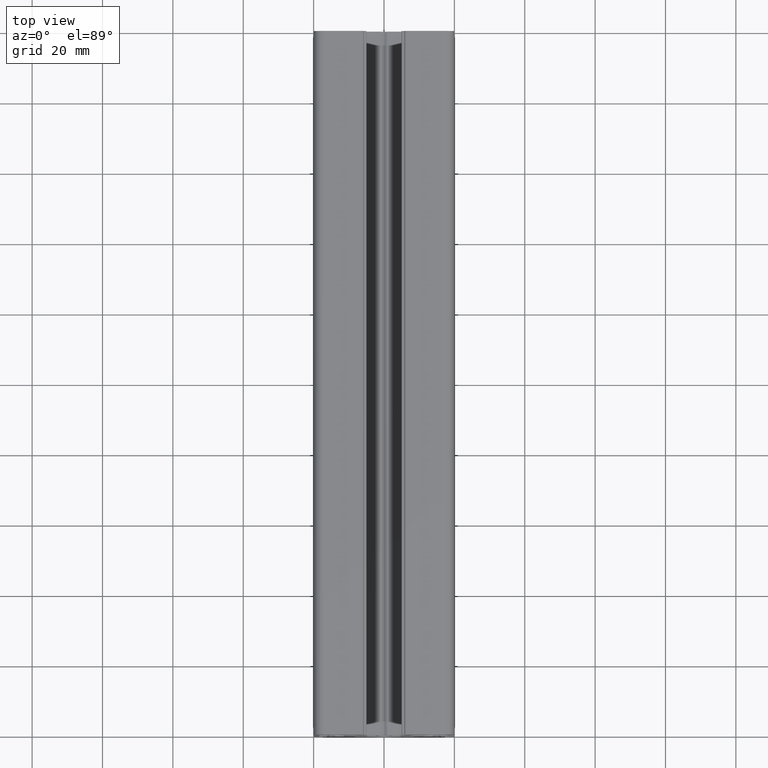
[diagram: clean part render]
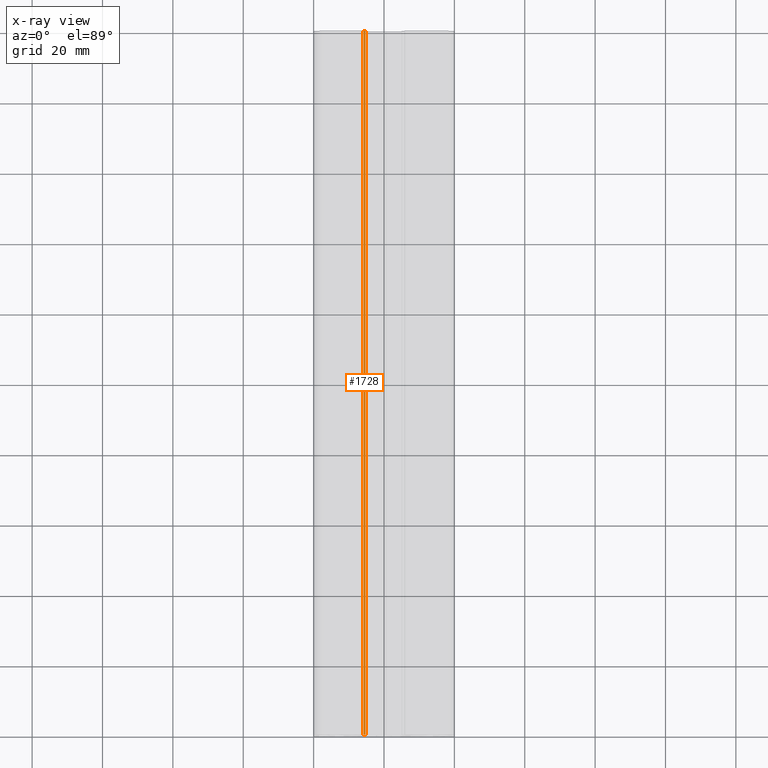
[diagram: x-ray — body ghosted, one internal face saturated and labeled with its STEP entity id]
A machine part, top view, then the same camera in x-ray: the body is ghosted and one INTERNAL B-rep face — a face not visible from any outside direction — is saturated and labeled: STEP entity #1728.
In plain terms, the highlighted planar face has unit normal (0, -0, 1).
Its self-contained STEP definition (entity closure, byte-faithful):
#152 = VECTOR ( 'NONE', #805, 1000.000000000000000 ) ;
#223 = LINE ( 'NONE', #1189, #152 ) ;
#382 = ORIENTED_EDGE ( 'NONE', *, *, #5113, .F. ) ;
#540 = VECTOR ( 'NONE', #3889, 1000.000000000000000 ) ;
#792 = VERTEX_POINT ( 'NONE', #4588 ) ;
#805 = DIRECTION ( 'NONE',  ( 1.000000000000000000, 0.0000000000000000000, -1.598721155463940100E-012 ) ) ;
#1120 = VERTEX_POINT ( 'NONE', #3197 ) ;
#1189 = CARTESIAN_POINT ( 'NONE',  ( -5.799966670000159800, 0.0000000000000000000, 18.49999999999949900 ) ) ;
#1287 = FACE_OUTER_BOUND ( 'NONE', #2601, .T. ) ;
#1384 = DIRECTION ( 'NONE',  ( -0.0000000000000000000, -1.000000000000000000, -0.0000000000000000000 ) ) ;
#1454 = EDGE_CURVE ( 'NONE', #2417, #2106, #3685, .T. ) ;
#1521 = CARTESIAN_POINT ( 'NONE',  ( -5.799966670000159800, 0.0000000000000000000, 18.49999999999949900 ) ) ;
#1680 = CARTESIAN_POINT ( 'NONE',  ( -5.799966670000159800, 0.0000000000000000000, 18.49999999999949900 ) ) ;
#1728 = ADVANCED_FACE ( 'NONE', ( #1287 ), #2129, .T. ) ;
#1821 = CARTESIAN_POINT ( 'NONE',  ( -5.799966670000159800, 200.0000000000000000, 18.49999999999949900 ) ) ;
#1894 = LINE ( 'NONE', #3098, #3922 ) ;
#2106 = VERTEX_POINT ( 'NONE', #1521 ) ;
#2129 = PLANE ( 'NONE',  #2515 ) ;
#2417 = VERTEX_POINT ( 'NONE', #1821 ) ;
#2515 = AXIS2_PLACEMENT_3D ( 'NONE', #1680, #3837, #2568 ) ;
#2547 = ORIENTED_EDGE ( 'NONE', *, *, #1454, .T. ) ;
#2568 = DIRECTION ( 'NONE',  ( 1.000000000000000000, 0.0000000000000000000, -1.598721155463940100E-012 ) ) ;
#2601 = EDGE_LOOP ( 'NONE', ( #2810, #382, #4065, #2547 ) ) ;
#2810 = ORIENTED_EDGE ( 'NONE', *, *, #3808, .T. ) ;
#3043 = CARTESIAN_POINT ( 'NONE',  ( -5.799966670000159800, 200.0000000000000000, 18.49999999999949900 ) ) ;
#3092 = DIRECTION ( 'NONE',  ( -0.0000000000000000000, -1.000000000000000000, -0.0000000000000000000 ) ) ;
#3098 = CARTESIAN_POINT ( 'NONE',  ( -5.299966670001319700, 0.0000000000000000000, 18.49999999999867800 ) ) ;
#3197 = CARTESIAN_POINT ( 'NONE',  ( -5.299966670001080800, 200.0000000000000000, 18.49999999999869300 ) ) ;
#3685 = LINE ( 'NONE', #3936, #4345 ) ;
#3808 = EDGE_CURVE ( 'NONE', #2106, #792, #223, .T. ) ;
#3837 = DIRECTION ( 'NONE',  ( 1.598721155463940100E-012, -0.0000000000000000000, 1.000000000000000000 ) ) ;
#3889 = DIRECTION ( 'NONE',  ( -1.000000000000000000, -0.0000000000000000000, 1.598721155463940100E-012 ) ) ;
#3922 = VECTOR ( 'NONE', #1384, 1000.000000000000000 ) ;
#3936 = CARTESIAN_POINT ( 'NONE',  ( -5.799966670000159800, 0.0000000000000000000, 18.49999999999949900 ) ) ;
#4065 = ORIENTED_EDGE ( 'NONE', *, *, #4883, .T. ) ;
#4135 = LINE ( 'NONE', #3043, #540 ) ;
#4345 = VECTOR ( 'NONE', #3092, 1000.000000000000000 ) ;
#4588 = CARTESIAN_POINT ( 'NONE',  ( -5.299966670001080800, 0.0000000000000000000, 18.49999999999869300 ) ) ;
#4883 = EDGE_CURVE ( 'NONE', #1120, #2417, #4135, .T. ) ;
#5113 = EDGE_CURVE ( 'NONE', #1120, #792, #1894, .T. ) ;